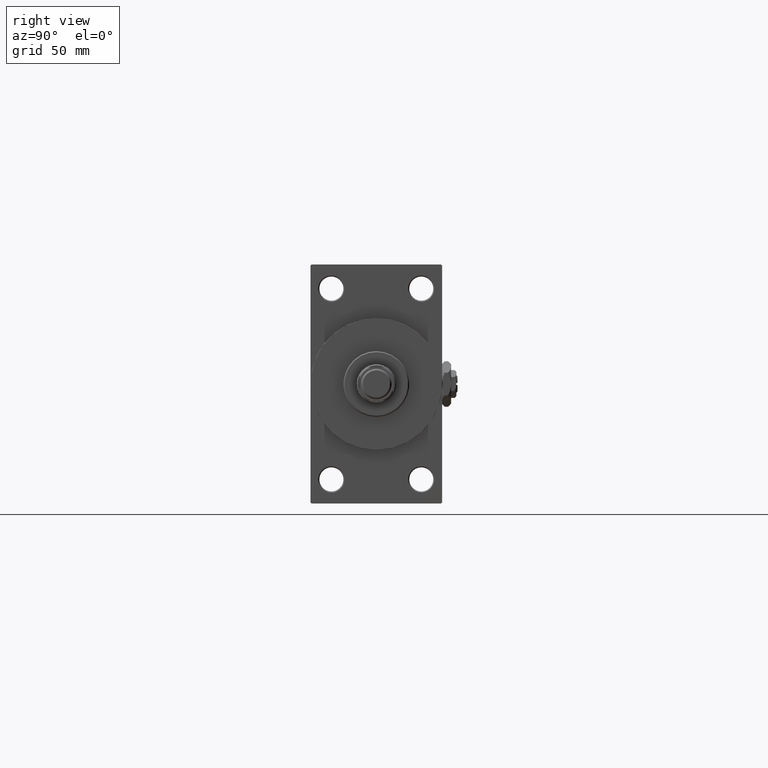
[diagram: clean part render]
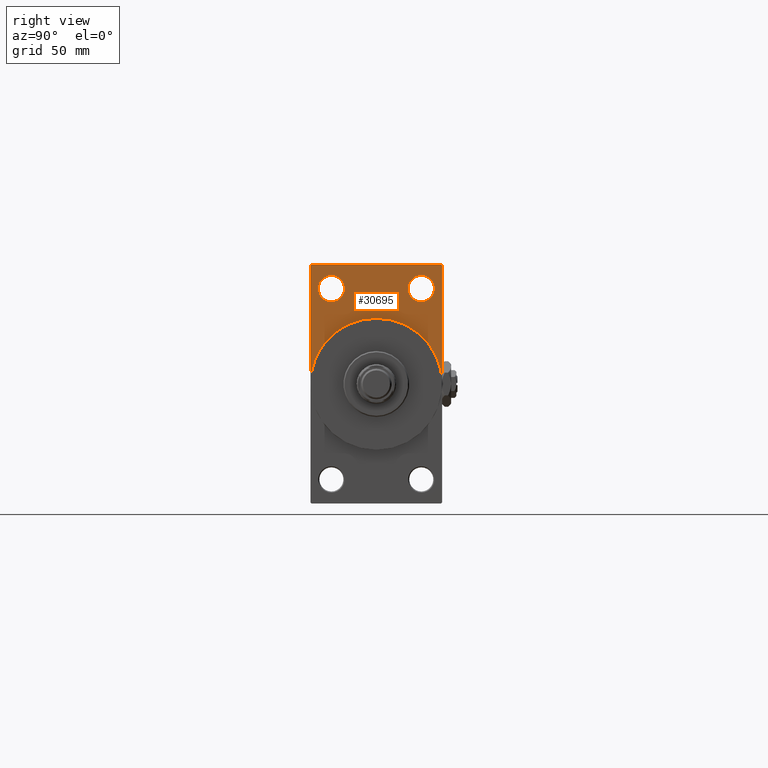
[diagram: same view with one face highlighted and labeled with its STEP entity id]
A machine part, right view. The second image highlights one B-rep face of the part: STEP entity #30695.
In plain terms, the highlighted planar face has unit normal (-1, 0, 0).
Its self-contained STEP definition (entity closure, byte-faithful):
#161 = CARTESIAN_POINT ( 'NONE',  ( 243.0000000000000000, 0.000000000000000000, 30.00000000000000000 ) ) ;
#416 = VERTEX_POINT ( 'NONE', #16202 ) ;
#466 = VERTEX_POINT ( 'NONE', #39607 ) ;
#590 = EDGE_CURVE ( 'NONE', #34171, #28098, #8537, .T. ) ;
#892 = DIRECTION ( 'NONE',  ( -1.000000000000000000, 0.000000000000000000, -0.000000000000000000 ) ) ;
#2349 = CARTESIAN_POINT ( 'NONE',  ( 243.0000000000000000, 29.49999999999999645, 54.49999999999999289 ) ) ;
#2842 = VERTEX_POINT ( 'NONE', #35310 ) ;
#3097 = ORIENTED_EDGE ( 'NONE', *, *, #30233, .T. ) ;
#3420 = ORIENTED_EDGE ( 'NONE', *, *, #42254, .T. ) ;
#4010 = CARTESIAN_POINT ( 'NONE',  ( 243.0000000000000000, -30.00000000000000000, 54.50000000000000000 ) ) ;
#5336 = CARTESIAN_POINT ( 'NONE',  ( 243.0000000000000000, -29.50000000000000355, 54.50000000000000000 ) ) ;
#6093 = LINE ( 'NONE', #28505, #19669 ) ;
#6409 = ORIENTED_EDGE ( 'NONE', *, *, #28671, .T. ) ;
#6898 = EDGE_CURVE ( 'NONE', #42750, #17373, #49401, .T. ) ;
#7210 = VERTEX_POINT ( 'NONE', #37219 ) ;
#7591 = AXIS2_PLACEMENT_3D ( 'NONE', #28650, #39728, #21085 ) ;
#7783 = EDGE_CURVE ( 'NONE', #34467, #7210, #30149, .T. ) ;
#7957 = EDGE_LOOP ( 'NONE', ( #3420, #10788 ) ) ;
#8537 = LINE ( 'NONE', #4010, #17174 ) ;
#9009 = PLANE ( 'NONE',  #7591 ) ;
#9521 = ORIENTED_EDGE ( 'NONE', *, *, #590, .T. ) ;
#9905 = ORIENTED_EDGE ( 'NONE', *, *, #43267, .F. ) ;
#10159 = CARTESIAN_POINT ( 'NONE',  ( 243.0000000000000000, 20.50000000000000000, 37.50000000000002132 ) ) ;
#10788 = ORIENTED_EDGE ( 'NONE', *, *, #37587, .T. ) ;
#11836 = ORIENTED_EDGE ( 'NONE', *, *, #46097, .T. ) ;
#13315 = DIRECTION ( 'NONE',  ( 0.000000000000000000, 0.000000000000000000, 1.000000000000000000 ) ) ;
#13672 = DIRECTION ( 'NONE',  ( 0.000000000000000000, -0.7071067811865279218, 0.7071067811865672237 ) ) ;
#13792 = DIRECTION ( 'NONE',  ( -1.000000000000000000, 0.000000000000000000, -0.000000000000000000 ) ) ;
#14126 = DIRECTION ( 'NONE',  ( 0.000000000000000000, 0.000000000000000000, -1.000000000000000000 ) ) ;
#14585 = AXIS2_PLACEMENT_3D ( 'NONE', #21602, #17832, #17111 ) ;
#14688 = DIRECTION ( 'NONE',  ( 0.000000000000000000, 0.000000000000000000, 1.000000000000000000 ) ) ;
#14836 = AXIS2_PLACEMENT_3D ( 'NONE', #25459, #40816, #14126 ) ;
#14860 = CARTESIAN_POINT ( 'NONE',  ( 243.0000000000000000, -30.00000000000000000, 54.00000000000002842 ) ) ;
#15312 = CARTESIAN_POINT ( 'NONE',  ( 243.0000000000000000, -20.50000000000000000, 37.50000000000002132 ) ) ;
#16202 = CARTESIAN_POINT ( 'NONE',  ( 243.0000000000000000, -20.50000000000000000, 49.49999999999997158 ) ) ;
#17065 = VERTEX_POINT ( 'NONE', #15312 ) ;
#17111 = DIRECTION ( 'NONE',  ( 0.000000000000000000, 0.000000000000000000, 1.000000000000000000 ) ) ;
#17174 = VECTOR ( 'NONE', #39245, 1000.000000000000000 ) ;
#17180 = DIRECTION ( 'NONE',  ( 1.000000000000000000, 0.000000000000000000, 0.000000000000000000 ) ) ;
#17373 = VERTEX_POINT ( 'NONE', #161 ) ;
#17832 = DIRECTION ( 'NONE',  ( -1.000000000000000000, 0.000000000000000000, -0.000000000000000000 ) ) ;
#18161 = AXIS2_PLACEMENT_3D ( 'NONE', #49668, #33828, #14688 ) ;
#19669 = VECTOR ( 'NONE', #21445, 1000.000000000000000 ) ;
#20595 = FACE_OUTER_BOUND ( 'NONE', #39766, .T. ) ;
#21085 = DIRECTION ( 'NONE',  ( -0.000000000000000000, 0.000000000000000000, 1.000000000000000000 ) ) ;
#21445 = DIRECTION ( 'NONE',  ( 0.000000000000000000, 0.000000000000000000, -1.000000000000000000 ) ) ;
#21467 = EDGE_LOOP ( 'NONE', ( #26923, #11836 ) ) ;
#21517 = LINE ( 'NONE', #25771, #35740 ) ;
#21601 = CARTESIAN_POINT ( 'NONE',  ( 243.0000000000000000, 20.50000000000000000, 43.50000000000000000 ) ) ;
#21602 = CARTESIAN_POINT ( 'NONE',  ( 243.0000000000000000, -20.50000000000000000, 43.50000000000000000 ) ) ;
#21955 = AXIS2_PLACEMENT_3D ( 'NONE', #21601, #13792, #13315 ) ;
#23233 = ORIENTED_EDGE ( 'NONE', *, *, #29322, .T. ) ;
#24046 = DIRECTION ( 'NONE',  ( 0.000000000000000000, 0.000000000000000000, 1.000000000000000000 ) ) ;
#24468 = CARTESIAN_POINT ( 'NONE',  ( 243.0000000000000000, 0.000000000000000000, 0.000000000000000000 ) ) ;
#25197 = CIRCLE ( 'NONE', #21955, 5.999999999999977796 ) ;
#25459 = CARTESIAN_POINT ( 'NONE',  ( 243.0000000000000000, 0.000000000000000000, 0.000000000000000000 ) ) ;
#25771 = CARTESIAN_POINT ( 'NONE',  ( 243.0000000000000000, -30.00000000000000000, 54.00000000000002842 ) ) ;
#26063 = VECTOR ( 'NONE', #47297, 1000.000000000000000 ) ;
#26923 = ORIENTED_EDGE ( 'NONE', *, *, #7783, .T. ) ;
#27747 = DIRECTION ( 'NONE',  ( 0.000000000000000000, 0.000000000000000000, -1.000000000000000000 ) ) ;
#28098 = VERTEX_POINT ( 'NONE', #42349 ) ;
#28140 = FACE_BOUND ( 'NONE', #7957, .T. ) ;
#28251 = CIRCLE ( 'NONE', #14585, 5.999999999999977796 ) ;
#28395 = FACE_BOUND ( 'NONE', #21467, .T. ) ;
#28505 = CARTESIAN_POINT ( 'NONE',  ( 243.0000000000000000, 29.99999999999999645, 54.49999999999999289 ) ) ;
#28650 = CARTESIAN_POINT ( 'NONE',  ( 243.0000000000000000, 0.000000000000000000, 0.000000000000000000 ) ) ;
#28671 = EDGE_CURVE ( 'NONE', #2842, #466, #36346, .T. ) ;
#29322 = EDGE_CURVE ( 'NONE', #466, #34026, #35980, .T. ) ;
#30149 = CIRCLE ( 'NONE', #47040, 5.999999999999977796 ) ;
#30233 = EDGE_CURVE ( 'NONE', #34026, #34171, #21517, .T. ) ;
#30338 = CARTESIAN_POINT ( 'NONE',  ( 243.0000000000000000, 30.00000000000000000, 0.000000000000000000 ) ) ;
#30695 = ADVANCED_FACE ( 'NONE', ( #28140, #28395, #20595 ), #9009, .F. ) ;
#33828 = DIRECTION ( 'NONE',  ( -1.000000000000000000, 0.000000000000000000, -0.000000000000000000 ) ) ;
#34026 = VERTEX_POINT ( 'NONE', #5336 ) ;
#34171 = VERTEX_POINT ( 'NONE', #14860 ) ;
#34467 = VERTEX_POINT ( 'NONE', #10159 ) ;
#34878 = EDGE_CURVE ( 'NONE', #2842, #42750, #6093, .T. ) ;
#35310 = CARTESIAN_POINT ( 'NONE',  ( 243.0000000000000000, 29.99999999999999645, 53.99999999999996447 ) ) ;
#35740 = VECTOR ( 'NONE', #47953, 1000.000000000000114 ) ;
#35980 = LINE ( 'NONE', #48277, #26063 ) ;
#36346 = LINE ( 'NONE', #2349, #42099 ) ;
#37219 = CARTESIAN_POINT ( 'NONE',  ( 243.0000000000000000, 20.50000000000000000, 49.49999999999997158 ) ) ;
#37587 = EDGE_CURVE ( 'NONE', #416, #17065, #39878, .T. ) ;
#37951 = AXIS2_PLACEMENT_3D ( 'NONE', #24468, #17180, #27747 ) ;
#38708 = ORIENTED_EDGE ( 'NONE', *, *, #6898, .F. ) ;
#38749 = CIRCLE ( 'NONE', #37951, 30.00000000000000000 ) ;
#39154 = CARTESIAN_POINT ( 'NONE',  ( 243.0000000000000000, 20.50000000000000000, 43.50000000000000000 ) ) ;
#39245 = DIRECTION ( 'NONE',  ( 0.000000000000000000, 0.000000000000000000, -1.000000000000000000 ) ) ;
#39607 = CARTESIAN_POINT ( 'NONE',  ( 243.0000000000000000, 29.49999999999999645, 54.49999999999999289 ) ) ;
#39728 = DIRECTION ( 'NONE',  ( -1.000000000000000000, 0.000000000000000000, -0.000000000000000000 ) ) ;
#39766 = EDGE_LOOP ( 'NONE', ( #23233, #3097, #9521, #9905, #38708, #43119, #6409 ) ) ;
#39878 = CIRCLE ( 'NONE', #18161, 5.999999999999977796 ) ;
#40816 = DIRECTION ( 'NONE',  ( 1.000000000000000000, 0.000000000000000000, 0.000000000000000000 ) ) ;
#42099 = VECTOR ( 'NONE', #13672, 1000.000000000000000 ) ;
#42254 = EDGE_CURVE ( 'NONE', #17065, #416, #28251, .T. ) ;
#42349 = CARTESIAN_POINT ( 'NONE',  ( 243.0000000000000000, -30.00000000000000000, 0.000000000000000000 ) ) ;
#42750 = VERTEX_POINT ( 'NONE', #30338 ) ;
#43119 = ORIENTED_EDGE ( 'NONE', *, *, #34878, .F. ) ;
#43267 = EDGE_CURVE ( 'NONE', #17373, #28098, #38749, .T. ) ;
#46097 = EDGE_CURVE ( 'NONE', #7210, #34467, #25197, .T. ) ;
#47040 = AXIS2_PLACEMENT_3D ( 'NONE', #39154, #892, #24046 ) ;
#47297 = DIRECTION ( 'NONE',  ( 0.000000000000000000, -1.000000000000000000, 1.156482317317871478E-16 ) ) ;
#47953 = DIRECTION ( 'NONE',  ( -0.000000000000000000, -0.7071067811865647812, -0.7071067811865302533 ) ) ;
#48277 = CARTESIAN_POINT ( 'NONE',  ( 243.0000000000000000, 29.99999999999999645, 54.49999999999999289 ) ) ;
#49401 = CIRCLE ( 'NONE', #14836, 30.00000000000000000 ) ;
#49668 = CARTESIAN_POINT ( 'NONE',  ( 243.0000000000000000, -20.50000000000000000, 43.50000000000000000 ) ) ;